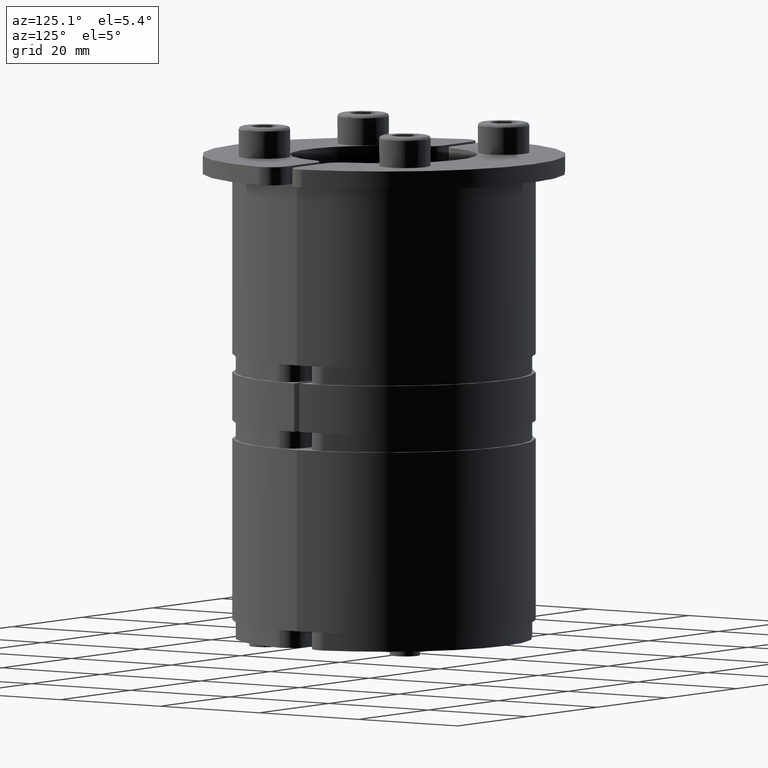
[diagram: clean part render]
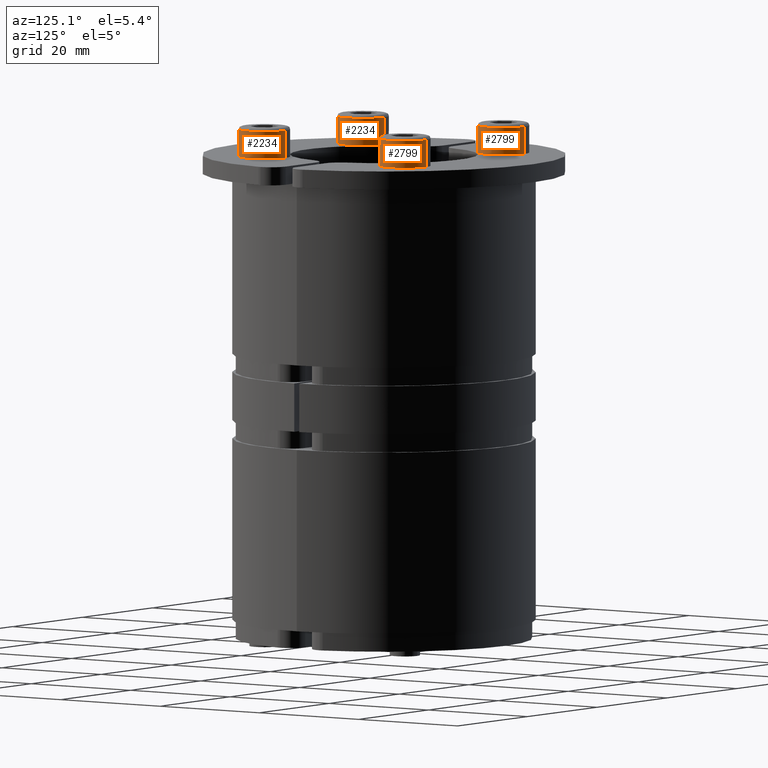
[diagram: same view with one multi-face feature highlighted, each face labeled with its STEP entity id]
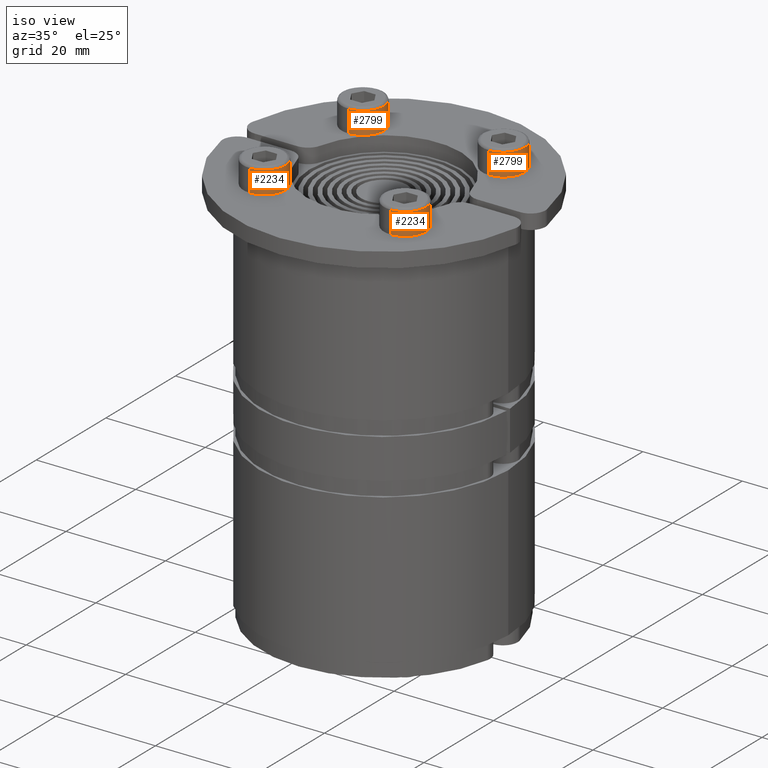
[diagram: same view with one multi-face feature highlighted, each face labeled with its STEP entity id]
A machine part, auxiliary view. The highlighted faces form ONE feature: a constant-radius fillet chain: 4 tangent blend faces with common blend radius 4.25 mm. The faces share edges in the B-rep.
A second angle (iso view) of the same feature is appended — it is thin or edge-on in the first view.
Their STEP definitions:
[1] entity #2799 (Cylinder):
#2189=CARTESIAN_POINT('',(2.531308E-014,4.250000000000000,0.0));
#2190=VERTEX_POINT('',#2189);
#2191=CARTESIAN_POINT('',(-4.500000000000086,4.250000000000227,0.0));
#2192=VERTEX_POINT('',#2191);
#2193=CARTESIAN_POINT('',(2.531308E-014,4.250000000000000,0.0));
#2194=DIRECTION('',(-1.0,0.0,0.0));
#2195=VECTOR('',#2194,4.500000000000112);
#2196=LINE('',#2193,#2195);
#2197=EDGE_CURVE('',#2190,#2192,#2196,.T.);
#2199=CARTESIAN_POINT('',(2.531308E-014,-4.250000000000000,-5.204577E-016));
#2200=VERTEX_POINT('',#2199);
#2208=CARTESIAN_POINT('',(-4.500000000000085,-4.250000000000000,-5.204577E-016));
#2209=VERTEX_POINT('',#2208);
#2210=CARTESIAN_POINT('',(-4.500000000000085,-4.250000000000000,-5.204577E-016));
#2211=DIRECTION('',(1.0,0.0,0.0));
#2212=VECTOR('',#2211,4.500000000000110);
#2213=LINE('',#2210,#2212);
#2214=EDGE_CURVE('',#2209,#2200,#2213,.T.);
#2298=CARTESIAN_POINT('',(-4.500000000000085,-5.204577E-016,4.250000000000000));
#2299=VERTEX_POINT('',#2298);
#2300=CARTESIAN_POINT('',(-4.500000000000085,0.0,0.0));
#2301=DIRECTION('',(-1.0,0.0,0.0));
#2302=DIRECTION('',(0.0,1.0,0.0));
#2303=AXIS2_PLACEMENT_3D('',#2300,#2301,#2302);
#2304=CIRCLE('',#2303,4.250000000000000);
#2305=EDGE_CURVE('',#2209,#2299,#2304,.T.);
#2770=CARTESIAN_POINT('',(-4.500000000000085,0.0,0.0));
#2771=DIRECTION('',(-1.0,0.0,0.0));
#2772=DIRECTION('',(0.0,1.0,0.0));
#2773=AXIS2_PLACEMENT_3D('',#2770,#2771,#2772);
#2774=CIRCLE('',#2773,4.250000000000000);
#2775=EDGE_CURVE('',#2299,#2192,#2774,.T.);
#2781=CARTESIAN_POINT('',(-2.500000000000002,0.0,0.0));
#2782=DIRECTION('',(-1.0,1.232595E-031,0.0));
#2783=DIRECTION('',(0.0,1.0,0.0));
#2784=AXIS2_PLACEMENT_3D('',#2781,#2782,#2783);
#2785=CYLINDRICAL_SURFACE('',#2784,4.250000000000000);
#2786=ORIENTED_EDGE('',*,*,#2197,.T.);
#2787=ORIENTED_EDGE('',*,*,#2775,.F.);
#2788=ORIENTED_EDGE('',*,*,#2305,.F.);
#2789=ORIENTED_EDGE('',*,*,#2214,.T.);
#2790=CARTESIAN_POINT('',(2.531308E-014,0.0,0.0));
#2791=DIRECTION('',(-1.0,0.0,0.0));
#2792=DIRECTION('',(0.0,1.0,0.0));
#2793=AXIS2_PLACEMENT_3D('',#2790,#2791,#2792);
#2794=CIRCLE('',#2793,4.250000000000000);
#2795=EDGE_CURVE('',#2200,#2190,#2794,.T.);
#2796=ORIENTED_EDGE('',*,*,#2795,.T.);
#2797=EDGE_LOOP('',(#2786,#2787,#2788,#2789,#2796));
#2798=FACE_OUTER_BOUND('',#2797,.T.);
#2799=ADVANCED_FACE('',(#2798),#2785,.T.);
[2] entity #2234 (Cylinder):
#2184=CARTESIAN_POINT('',(-2.500000000000002,0.0,0.0));
#2185=DIRECTION('',(-1.0,1.232595E-031,0.0));
#2186=DIRECTION('',(0.0,1.0,0.0));
#2187=AXIS2_PLACEMENT_3D('',#2184,#2185,#2186);
#2188=CYLINDRICAL_SURFACE('',#2187,4.250000000000000);
#2189=CARTESIAN_POINT('',(2.531308E-014,4.250000000000000,0.0));
#2190=VERTEX_POINT('',#2189);
#2191=CARTESIAN_POINT('',(-4.500000000000086,4.250000000000227,0.0));
#2192=VERTEX_POINT('',#2191);
#2193=CARTESIAN_POINT('',(2.531308E-014,4.250000000000000,0.0));
#2194=DIRECTION('',(-1.0,0.0,0.0));
#2195=VECTOR('',#2194,4.500000000000112);
#2196=LINE('',#2193,#2195);
#2197=EDGE_CURVE('',#2190,#2192,#2196,.T.);
#2198=ORIENTED_EDGE('',*,*,#2197,.F.);
#2199=CARTESIAN_POINT('',(2.531308E-014,-4.250000000000000,-5.204577E-016));
#2200=VERTEX_POINT('',#2199);
#2201=CARTESIAN_POINT('',(2.531308E-014,0.0,0.0));
#2202=DIRECTION('',(-1.0,0.0,0.0));
#2203=DIRECTION('',(0.0,1.0,0.0));
#2204=AXIS2_PLACEMENT_3D('',#2201,#2202,#2203);
#2205=CIRCLE('',#2204,4.250000000000000);
#2206=EDGE_CURVE('',#2190,#2200,#2205,.T.);
#2207=ORIENTED_EDGE('',*,*,#2206,.T.);
#2208=CARTESIAN_POINT('',(-4.500000000000085,-4.250000000000000,-5.204577E-016));
#2209=VERTEX_POINT('',#2208);
#2210=CARTESIAN_POINT('',(-4.500000000000085,-4.250000000000000,-5.204577E-016));
#2211=DIRECTION('',(1.0,0.0,0.0));
#2212=VECTOR('',#2211,4.500000000000110);
#2213=LINE('',#2210,#2212);
#2214=EDGE_CURVE('',#2209,#2200,#2213,.T.);
#2215=ORIENTED_EDGE('',*,*,#2214,.F.);
#2216=CARTESIAN_POINT('',(-4.500000000000085,5.204577E-016,-4.250000000000000));
#2217=VERTEX_POINT('',#2216);
#2218=CARTESIAN_POINT('',(-4.500000000000085,0.0,0.0));
#2219=DIRECTION('',(-1.0,0.0,0.0));
#2220=DIRECTION('',(0.0,1.0,0.0));
#2221=AXIS2_PLACEMENT_3D('',#2218,#2219,#2220);
#2222=CIRCLE('',#2221,4.250000000000000);
#2223=EDGE_CURVE('',#2217,#2209,#2222,.T.);
#2224=ORIENTED_EDGE('',*,*,#2223,.F.);
#2225=CARTESIAN_POINT('',(-4.500000000000085,0.0,0.0));
#2226=DIRECTION('',(-1.0,0.0,0.0));
#2227=DIRECTION('',(0.0,1.0,0.0));
#2228=AXIS2_PLACEMENT_3D('',#2225,#2226,#2227);
#2229=CIRCLE('',#2228,4.250000000000000);
#2230=EDGE_CURVE('',#2192,#2217,#2229,.T.);
#2231=ORIENTED_EDGE('',*,*,#2230,.F.);
#2232=EDGE_LOOP('',(#2198,#2207,#2215,#2224,#2231));
#2233=FACE_OUTER_BOUND('',#2232,.T.);
#2234=ADVANCED_FACE('',(#2233),#2188,.T.);
[3] entity #2799 (Cylinder):
#2189=CARTESIAN_POINT('',(2.531308E-014,4.250000000000000,0.0));
#2190=VERTEX_POINT('',#2189);
#2191=CARTESIAN_POINT('',(-4.500000000000086,4.250000000000227,0.0));
#2192=VERTEX_POINT('',#2191);
#2193=CARTESIAN_POINT('',(2.531308E-014,4.250000000000000,0.0));
#2194=DIRECTION('',(-1.0,0.0,0.0));
#2195=VECTOR('',#2194,4.500000000000112);
#2196=LINE('',#2193,#2195);
#2197=EDGE_CURVE('',#2190,#2192,#2196,.T.);
#2199=CARTESIAN_POINT('',(2.531308E-014,-4.250000000000000,-5.204577E-016));
#2200=VERTEX_POINT('',#2199);
#2208=CARTESIAN_POINT('',(-4.500000000000085,-4.250000000000000,-5.204577E-016));
#2209=VERTEX_POINT('',#2208);
#2210=CARTESIAN_POINT('',(-4.500000000000085,-4.250000000000000,-5.204577E-016));
#2211=DIRECTION('',(1.0,0.0,0.0));
#2212=VECTOR('',#2211,4.500000000000110);
#2213=LINE('',#2210,#2212);
#2214=EDGE_CURVE('',#2209,#2200,#2213,.T.);
#2298=CARTESIAN_POINT('',(-4.500000000000085,-5.204577E-016,4.250000000000000));
#2299=VERTEX_POINT('',#2298);
#2300=CARTESIAN_POINT('',(-4.500000000000085,0.0,0.0));
#2301=DIRECTION('',(-1.0,0.0,0.0));
#2302=DIRECTION('',(0.0,1.0,0.0));
#2303=AXIS2_PLACEMENT_3D('',#2300,#2301,#2302);
#2304=CIRCLE('',#2303,4.250000000000000);
#2305=EDGE_CURVE('',#2209,#2299,#2304,.T.);
#2770=CARTESIAN_POINT('',(-4.500000000000085,0.0,0.0));
#2771=DIRECTION('',(-1.0,0.0,0.0));
#2772=DIRECTION('',(0.0,1.0,0.0));
#2773=AXIS2_PLACEMENT_3D('',#2770,#2771,#2772);
#2774=CIRCLE('',#2773,4.250000000000000);
#2775=EDGE_CURVE('',#2299,#2192,#2774,.T.);
#2781=CARTESIAN_POINT('',(-2.500000000000002,0.0,0.0));
#2782=DIRECTION('',(-1.0,1.232595E-031,0.0));
#2783=DIRECTION('',(0.0,1.0,0.0));
#2784=AXIS2_PLACEMENT_3D('',#2781,#2782,#2783);
#2785=CYLINDRICAL_SURFACE('',#2784,4.250000000000000);
#2786=ORIENTED_EDGE('',*,*,#2197,.T.);
#2787=ORIENTED_EDGE('',*,*,#2775,.F.);
#2788=ORIENTED_EDGE('',*,*,#2305,.F.);
#2789=ORIENTED_EDGE('',*,*,#2214,.T.);
#2790=CARTESIAN_POINT('',(2.531308E-014,0.0,0.0));
#2791=DIRECTION('',(-1.0,0.0,0.0));
#2792=DIRECTION('',(0.0,1.0,0.0));
#2793=AXIS2_PLACEMENT_3D('',#2790,#2791,#2792);
#2794=CIRCLE('',#2793,4.250000000000000);
#2795=EDGE_CURVE('',#2200,#2190,#2794,.T.);
#2796=ORIENTED_EDGE('',*,*,#2795,.T.);
#2797=EDGE_LOOP('',(#2786,#2787,#2788,#2789,#2796));
#2798=FACE_OUTER_BOUND('',#2797,.T.);
#2799=ADVANCED_FACE('',(#2798),#2785,.T.);
[4] entity #2234 (Cylinder):
#2184=CARTESIAN_POINT('',(-2.500000000000002,0.0,0.0));
#2185=DIRECTION('',(-1.0,1.232595E-031,0.0));
#2186=DIRECTION('',(0.0,1.0,0.0));
#2187=AXIS2_PLACEMENT_3D('',#2184,#2185,#2186);
#2188=CYLINDRICAL_SURFACE('',#2187,4.250000000000000);
#2189=CARTESIAN_POINT('',(2.531308E-014,4.250000000000000,0.0));
#2190=VERTEX_POINT('',#2189);
#2191=CARTESIAN_POINT('',(-4.500000000000086,4.250000000000227,0.0));
#2192=VERTEX_POINT('',#2191);
#2193=CARTESIAN_POINT('',(2.531308E-014,4.250000000000000,0.0));
#2194=DIRECTION('',(-1.0,0.0,0.0));
#2195=VECTOR('',#2194,4.500000000000112);
#2196=LINE('',#2193,#2195);
#2197=EDGE_CURVE('',#2190,#2192,#2196,.T.);
#2198=ORIENTED_EDGE('',*,*,#2197,.F.);
#2199=CARTESIAN_POINT('',(2.531308E-014,-4.250000000000000,-5.204577E-016));
#2200=VERTEX_POINT('',#2199);
#2201=CARTESIAN_POINT('',(2.531308E-014,0.0,0.0));
#2202=DIRECTION('',(-1.0,0.0,0.0));
#2203=DIRECTION('',(0.0,1.0,0.0));
#2204=AXIS2_PLACEMENT_3D('',#2201,#2202,#2203);
#2205=CIRCLE('',#2204,4.250000000000000);
#2206=EDGE_CURVE('',#2190,#2200,#2205,.T.);
#2207=ORIENTED_EDGE('',*,*,#2206,.T.);
#2208=CARTESIAN_POINT('',(-4.500000000000085,-4.250000000000000,-5.204577E-016));
#2209=VERTEX_POINT('',#2208);
#2210=CARTESIAN_POINT('',(-4.500000000000085,-4.250000000000000,-5.204577E-016));
#2211=DIRECTION('',(1.0,0.0,0.0));
#2212=VECTOR('',#2211,4.500000000000110);
#2213=LINE('',#2210,#2212);
#2214=EDGE_CURVE('',#2209,#2200,#2213,.T.);
#2215=ORIENTED_EDGE('',*,*,#2214,.F.);
#2216=CARTESIAN_POINT('',(-4.500000000000085,5.204577E-016,-4.250000000000000));
#2217=VERTEX_POINT('',#2216);
#2218=CARTESIAN_POINT('',(-4.500000000000085,0.0,0.0));
#2219=DIRECTION('',(-1.0,0.0,0.0));
#2220=DIRECTION('',(0.0,1.0,0.0));
#2221=AXIS2_PLACEMENT_3D('',#2218,#2219,#2220);
#2222=CIRCLE('',#2221,4.250000000000000);
#2223=EDGE_CURVE('',#2217,#2209,#2222,.T.);
#2224=ORIENTED_EDGE('',*,*,#2223,.F.);
#2225=CARTESIAN_POINT('',(-4.500000000000085,0.0,0.0));
#2226=DIRECTION('',(-1.0,0.0,0.0));
#2227=DIRECTION('',(0.0,1.0,0.0));
#2228=AXIS2_PLACEMENT_3D('',#2225,#2226,#2227);
#2229=CIRCLE('',#2228,4.250000000000000);
#2230=EDGE_CURVE('',#2192,#2217,#2229,.T.);
#2231=ORIENTED_EDGE('',*,*,#2230,.F.);
#2232=EDGE_LOOP('',(#2198,#2207,#2215,#2224,#2231));
#2233=FACE_OUTER_BOUND('',#2232,.T.);
#2234=ADVANCED_FACE('',(#2233),#2188,.T.);